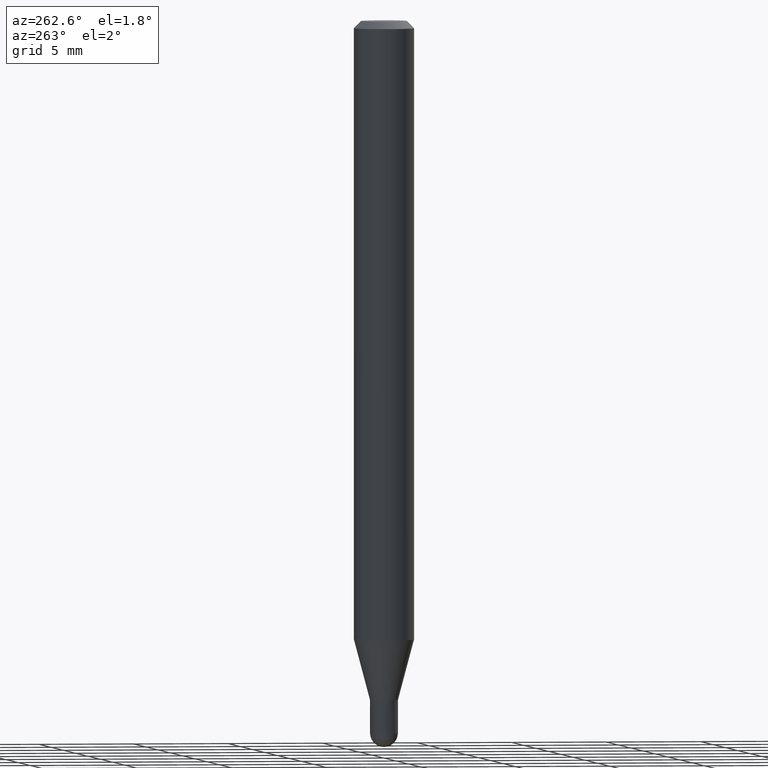
[diagram: clean part render]
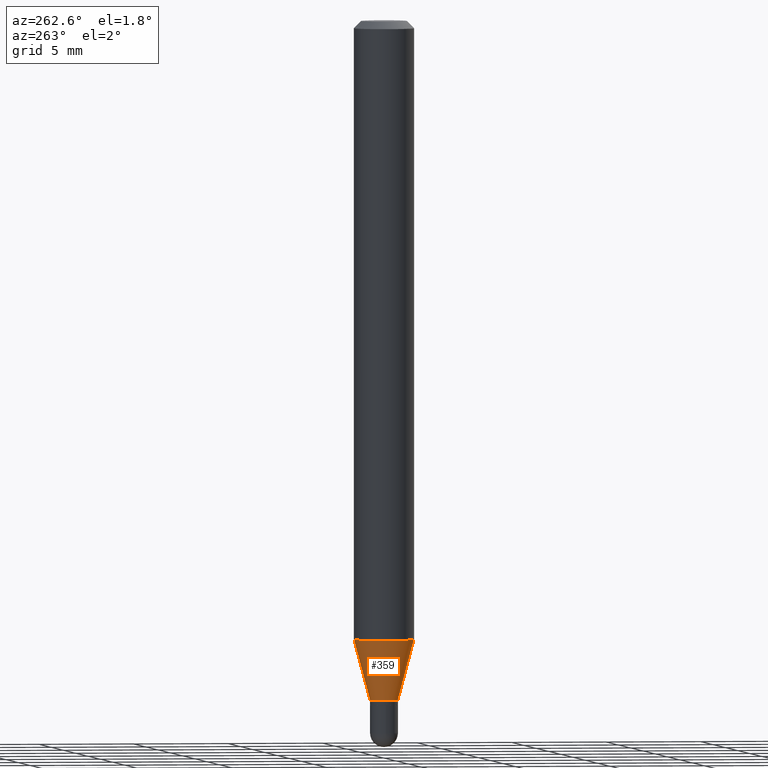
[diagram: same view with one face highlighted and labeled with its STEP entity id]
A machine part, auxiliary view. The second image highlights one B-rep face of the part: STEP entity #359.
In plain terms, the highlighted conical surface has half-angle 15 deg.
Its self-contained STEP definition (entity closure, byte-faithful):
#16 = LINE ( 'NONE', #215, #405 ) ;
#18 = LINE ( 'NONE', #26, #271 ) ;
#21 = CIRCLE ( 'NONE', #115, 0.06250000000000000000 ) ;
#26 = CARTESIAN_POINT ( 'NONE',  ( 2.060573933704627882E-16, 0.02899999999999502281, -1.403000000000000025 ) ) ;
#31 = VERTEX_POINT ( 'NONE', #305 ) ;
#44 = CARTESIAN_POINT ( 'NONE',  ( 3.431013743687227308E-29, -4.898518232872422508E-15, -1.403000000000000025 ) ) ;
#50 = VERTEX_POINT ( 'NONE', #452 ) ;
#52 = DIRECTION ( 'NONE',  ( -6.982962677686265922E-15, -1.000000000000000000, 0.000000000000000000 ) ) ;
#96 = AXIS2_PLACEMENT_3D ( 'NONE', #44, #240, #120 ) ;
#100 = DIRECTION ( 'NONE',  ( -2.445483780247488928E-29, 3.491459895133586651E-15, 1.000000000000000000 ) ) ;
#103 = AXIS2_PLACEMENT_3D ( 'NONE', #457, #100, #52 ) ;
#108 = EDGE_CURVE ( 'NONE', #131, #361, #364, .T. ) ;
#115 = AXIS2_PLACEMENT_3D ( 'NONE', #376, #368, #217 ) ;
#120 = DIRECTION ( 'NONE',  ( -6.982962677686265922E-15, -1.000000000000000000, 0.000000000000000000 ) ) ;
#131 = VERTEX_POINT ( 'NONE', #201 ) ;
#179 = DIRECTION ( 'NONE',  ( 1.839019923739602287E-15, 0.2588190451025252359, 0.9659258262890670910 ) ) ;
#182 = DIRECTION ( 'NONE',  ( -1.807323732225332111E-15, -0.2588190451025184635, 0.9659258262890689783 ) ) ;
#187 = CONICAL_SURFACE ( 'NONE', #103, 0.02899999999999992514, 0.2617993877991505736 ) ;
#201 = CARTESIAN_POINT ( 'NONE',  ( 3.250733016102783684E-16, 0.02899999999999502281, -1.403000000000000025 ) ) ;
#207 = CARTESIAN_POINT ( 'NONE',  ( -2.025059176528669025E-16, -0.02900000000000482400, -1.403000000000000025 ) ) ;
#208 = EDGE_CURVE ( 'NONE', #131, #50, #18, .T. ) ;
#211 = ORIENTED_EDGE ( 'NONE', *, *, #226, .F. ) ;
#215 = CARTESIAN_POINT ( 'NONE',  ( -2.025059176528669025E-16, -0.02900000000000482400, -1.403000000000000025 ) ) ;
#217 = DIRECTION ( 'NONE',  ( -6.982962677686265922E-15, -1.000000000000000000, 4.370956789862821150E-15 ) ) ;
#225 = EDGE_LOOP ( 'NONE', ( #335, #269, #272, #211 ) ) ;
#226 = EDGE_CURVE ( 'NONE', #50, #31, #21, .T. ) ;
#240 = DIRECTION ( 'NONE',  ( -2.445483780247488928E-29, 3.491459895133586651E-15, 1.000000000000000000 ) ) ;
#269 = ORIENTED_EDGE ( 'NONE', *, *, #108, .T. ) ;
#271 = VECTOR ( 'NONE', #179, 39.37007874015748143 ) ;
#272 = ORIENTED_EDGE ( 'NONE', *, *, #323, .T. ) ;
#297 = FACE_OUTER_BOUND ( 'NONE', #225, .T. ) ;
#305 = CARTESIAN_POINT ( 'NONE',  ( -4.364351673553605587E-16, -0.06250000000000449640, -1.277976297946442630 ) ) ;
#323 = EDGE_CURVE ( 'NONE', #361, #31, #16, .T. ) ;
#335 = ORIENTED_EDGE ( 'NONE', *, *, #208, .F. ) ;
#359 = ADVANCED_FACE ( 'NONE', ( #297 ), #187, .T. ) ;
#361 = VERTEX_POINT ( 'NONE', #207 ) ;
#364 = CIRCLE ( 'NONE', #96, 0.02899999999999992514 ) ;
#368 = DIRECTION ( 'NONE',  ( -2.445483780247488928E-29, 3.491459895133586651E-15, 1.000000000000000000 ) ) ;
#376 = CARTESIAN_POINT ( 'NONE',  ( 3.125270308168757960E-29, -4.462002991211296494E-15, -1.277976297946442852 ) ) ;
#405 = VECTOR ( 'NONE', #182, 39.37007874015748854 ) ;
#452 = CARTESIAN_POINT ( 'NONE',  ( 4.440892098500935790E-16, 0.06249999999999551054, -1.277976297946443296 ) ) ;
#457 = CARTESIAN_POINT ( 'NONE',  ( 3.431013743687227308E-29, -4.898518232872422508E-15, -1.403000000000000025 ) ) ;